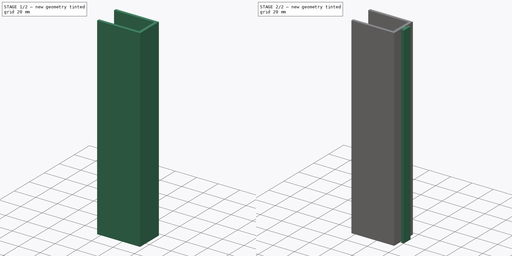
[diagram: build sequence overview — one tinted view per stage of 2, left to right]
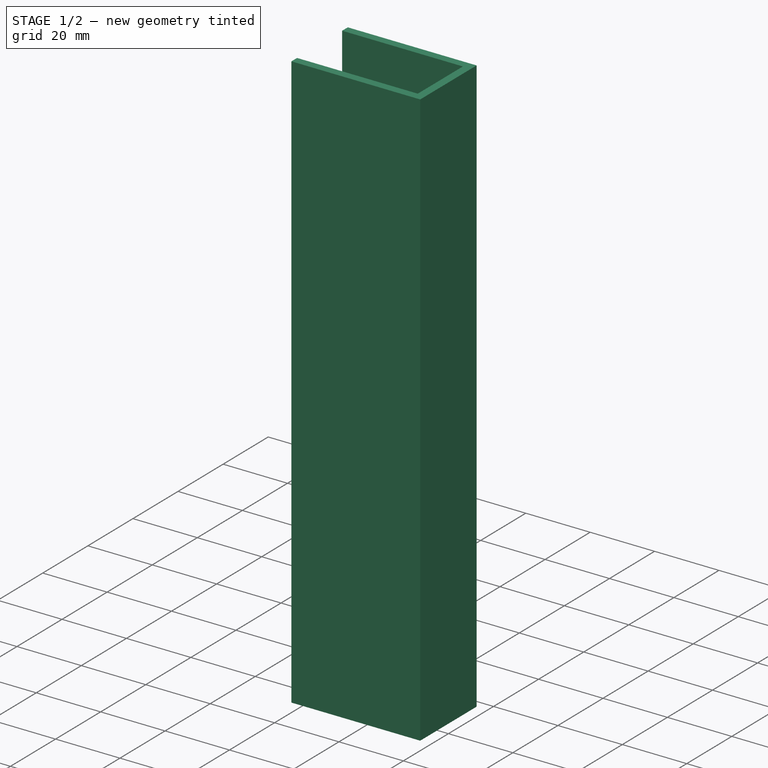
[diagram: stage 1 of 2 — iso view after this stage's code; geometry added in this stage tinted green]
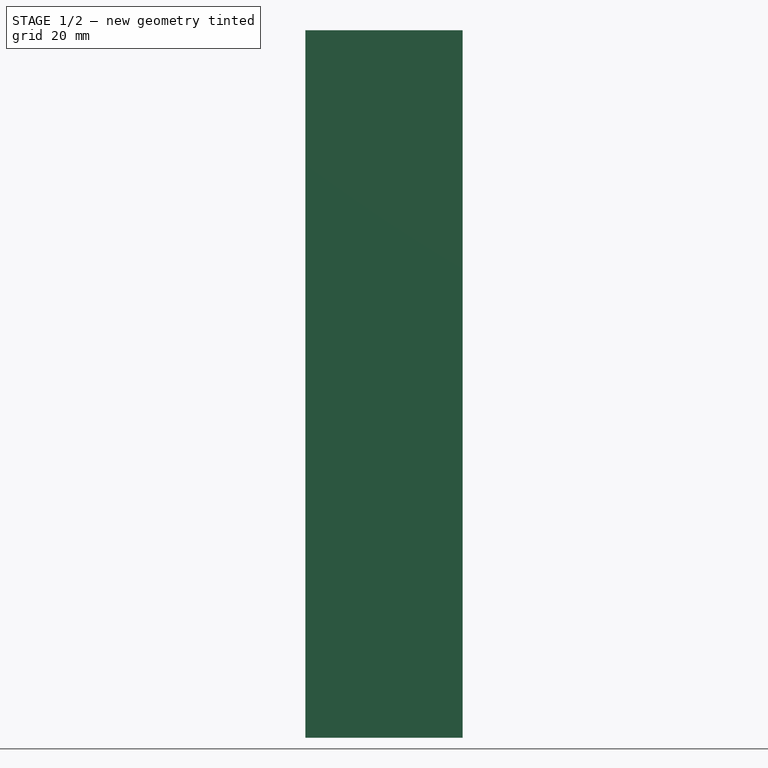
[diagram: stage 1 of 2 — front view after this stage's code; geometry added in this stage tinted green]
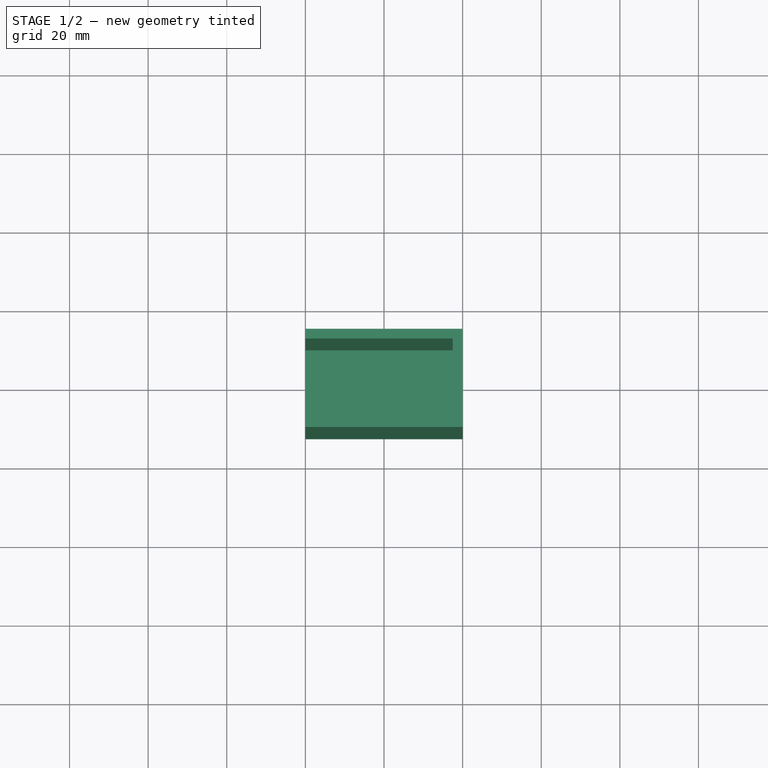
[diagram: stage 1 of 2 — top view after this stage's code; geometry added in this stage tinted green]
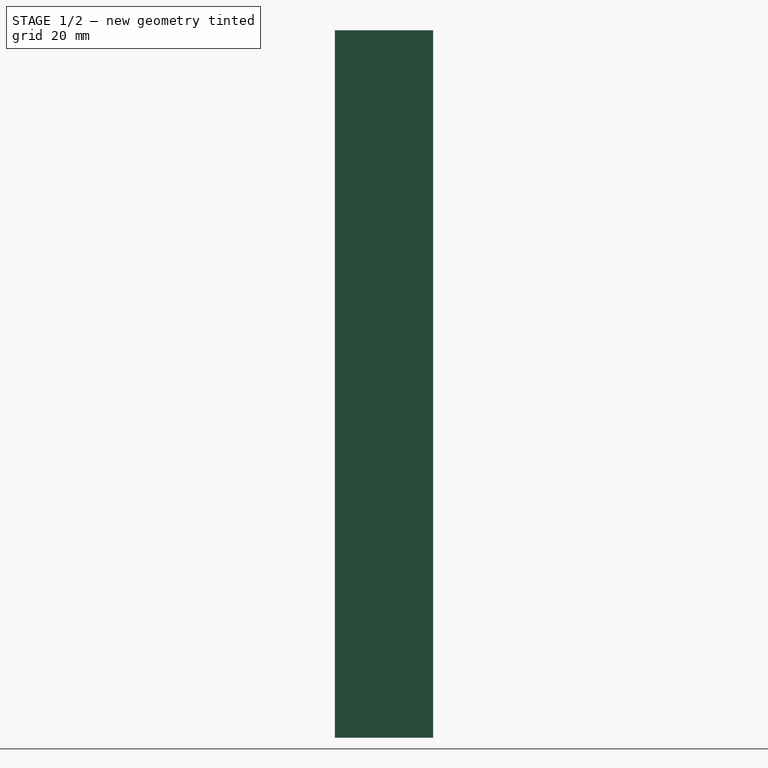
[diagram: stage 1 of 2 — right view after this stage's code; geometry added in this stage tinted green]
FCSTD DOCUMENT  (FreeCAD 0.19R)
Label: soportedeslizado
License: All rights reserved
LicenseURL: http://en.wikipedia.org/wiki/All_rights_reserved
objects: Sketcher::SketchObject×10, PartDesign::Pad×3, App::Part×1, PartDesign::Pocket×1, PartDesign::Plane×1, PartDesign::Body×1
note: 20 computed .brp shape members not serialized (recipe doc carries the construction recipe); baked Part::Feature solids carry a one-line shape summary decoded from their .brp

FEATURE [App::Part] Part
  Origin = -> Origin
FEATURE [Sketcher::SketchObject] Sketch
  FullyConstrained = false
  MapMode = 5
  Support = -> [XY_Plane001]
  sketch-geometry (6):
    g0: LineSegment StartX=-20 StartY=-12.5 StartZ=0 EndX=20 EndY=-12.5 EndZ=0
    g1: LineSegment StartX=20 StartY=-12.5 StartZ=0 EndX=20 EndY=12.5 EndZ=0
    g2: LineSegment StartX=20 StartY=12.5 StartZ=0 EndX=-20 EndY=12.5 EndZ=0
    g3: LineSegment StartX=-20 StartY=12.5 StartZ=0 EndX=-20 EndY=-12.5 EndZ=0
    g4: LineSegment StartX=0 StartY=0 StartZ=0 EndX=20 EndY=12.5 EndZ=0
    g5: LineSegment StartX=-20 StartY=-12.5 StartZ=0 EndX=0 EndY=0 EndZ=0
  constraints (15):
    c: Coincident(g0,g1)
    c: Coincident(g1,g2)
    c: Coincident(g2,g3)
    c: Coincident(g3,g0)
    c: Horizontal(g0)
    c: Horizontal(g2)
    c: Vertical(g1)
    c: Vertical(g3)
    c: DistanceX(g0,g0) = 40
    c: DistanceY(g1,g1) = 25
    c: Coincident(g4,g-1)
    c: Coincident(g4,g1)
    c: Coincident(g5,g0)
    c: Coincident(g5,g-1)
    c: Parallel(g5,g4)
FEATURE [PartDesign::Pad] Pad
  Direction = (1,1,1)
  Length = 180
  Length2 = 100
  Profile = -> Sketch
  Refine = true
  Type = 0
FEATURE [Sketcher::SketchObject] Sketch001
  ExternalGeometry = -> [Pad]
  FullyConstrained = false
  MapMode = 5
  Placement = pos=(0,0,180) rot=(0,0,1;0rad)
  Support = -> [Pad]
  sketch-geometry (7):
    g0: LineSegment StartX=17.5 StartY=10 StartZ=0 EndX=-22.0998 EndY=10 EndZ=0
    g1: LineSegment StartX=-22.0998 StartY=10 StartZ=0 EndX=-22.0998 EndY=-10 EndZ=0
    g2: LineSegment StartX=-22.0998 StartY=-10 StartZ=0 EndX=17.5 EndY=-10 EndZ=0
    g3: LineSegment StartX=17.5 StartY=-10 StartZ=0 EndX=17.5 EndY=10 EndZ=0
    g4: LineSegment StartX=15.6132 StartY=10 StartZ=0 EndX=15.6132 EndY=12.5 EndZ=0
    g5: LineSegment StartX=14.3222 StartY=-10 StartZ=0 EndX=14.3222 EndY=-12.5 EndZ=0
    g6: LineSegment StartX=17.5 StartY=-3.39475 StartZ=0 EndX=20 EndY=-3.39475 EndZ=0
  constraints (20):
    c: Coincident(g0,g1)
    c: Coincident(g1,g2)
    c: Coincident(g2,g3)
    c: Coincident(g3,g0)
    c: Horizontal(g0)
    c: Horizontal(g2)
    c: Vertical(g1)
    c: Vertical(g3)
    c: PointOnObject(g4,g0)
    c: PointOnObject(g4,g-6)
    c: Vertical(g4)
    c: PointOnObject(g5,g2)
    c: PointOnObject(g5,g-4)
    c: Vertical(g5)
    c: PointOnObject(g6,g3)
    c: PointOnObject(g6,g-3)
    c: Horizontal(g6)
    c: DistanceY(g5,g5) = 2.5
    c: DistanceY(g4,g4) = 2.5
    c: DistanceX(g6,g6) = 2.5
FEATURE [PartDesign::Pocket] Pocket
  BaseFeature = -> Pad
  Length = 172.5
  Length2 = 100
  Profile = -> Sketch001
  Refine = true
  Type = 0
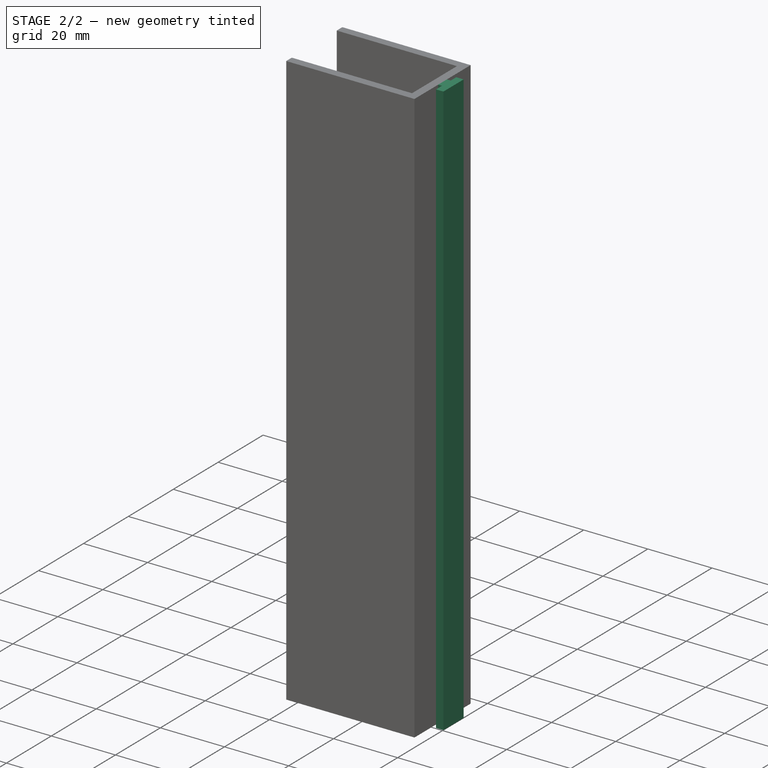
[diagram: stage 2 of 2 — iso view after this stage's code; geometry added in this stage tinted green]
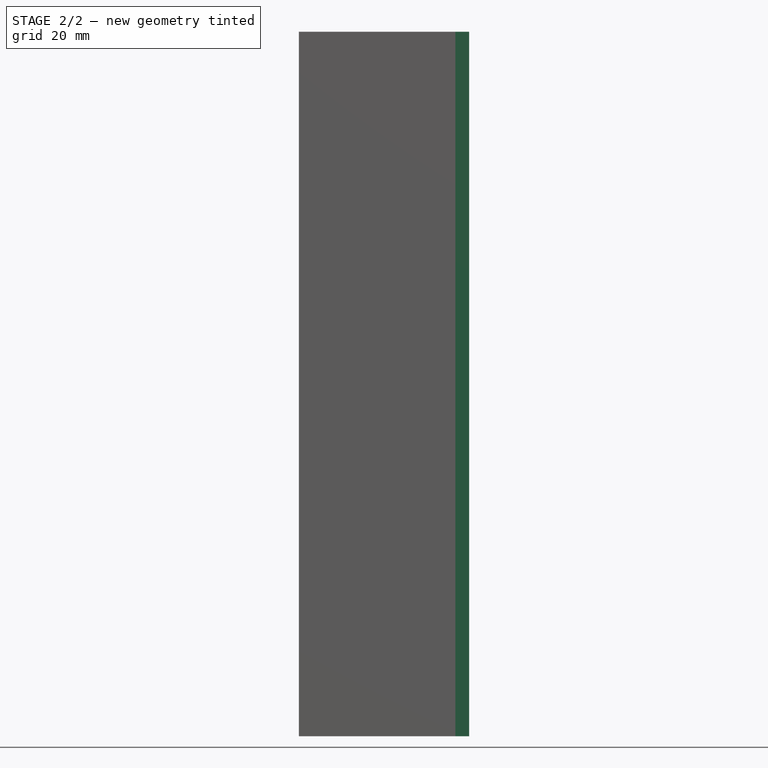
[diagram: stage 2 of 2 — front view after this stage's code; geometry added in this stage tinted green]
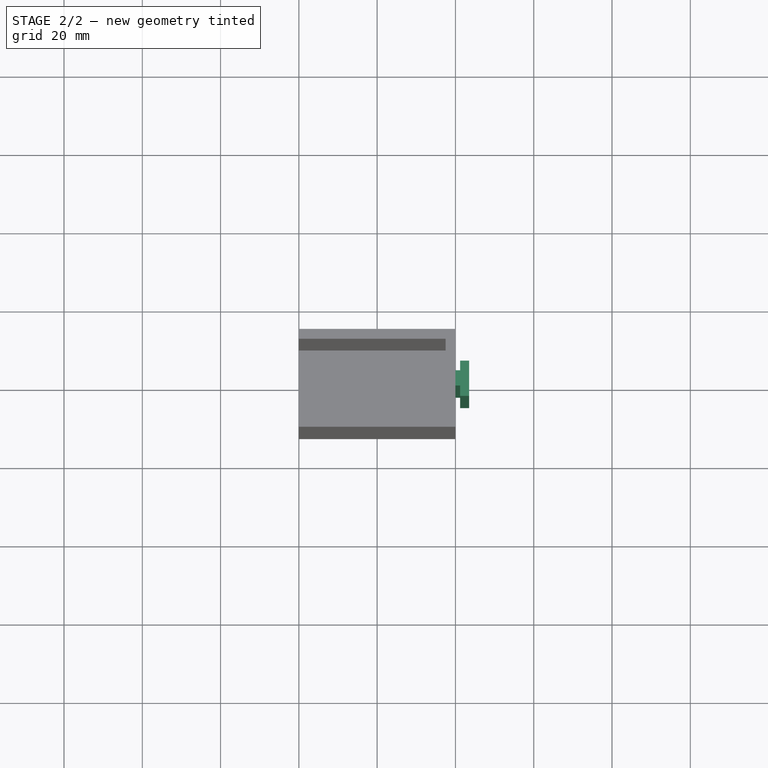
[diagram: stage 2 of 2 — top view after this stage's code; geometry added in this stage tinted green]
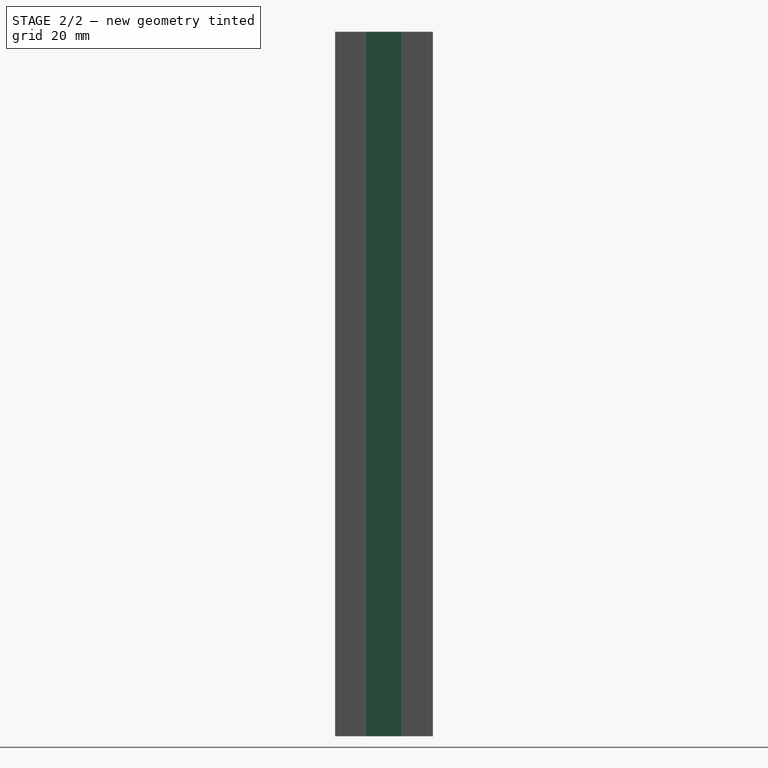
[diagram: stage 2 of 2 — right view after this stage's code; geometry added in this stage tinted green]
FEATURE [PartDesign::Plane] DatumPlane
  Length = 60
  MapMode = 5
  Placement = pos=(0,0,180) rot=(0,0,1;0rad)
  ResizeMode = 0
  Support = -> [Pocket]
  Width = 60
FEATURE [Sketcher::SketchObject] Sketch002
  ExternalGeometry = -> [Pocket]
  FullyConstrained = false
  MapMode = 5
  Placement = pos=(0,0,180) rot=(0,0,1;0rad)
  Support = -> [Pocket]
  sketch-geometry (8):
    g0: LineSegment StartX=-16.5292 StartY=10 StartZ=0 EndX=-16.5292 EndY=-10 EndZ=0
    g1: LineSegment StartX=19.2329 StartY=-1.95 StartZ=0 EndX=21.2 EndY=-1.95 EndZ=0
    g2: LineSegment StartX=21.2 StartY=-1.95 StartZ=0 EndX=21.2 EndY=1.95 EndZ=0
    g3: LineSegment StartX=21.2 StartY=1.95 StartZ=0 EndX=19.2329 EndY=1.95 EndZ=0
    g4: LineSegment StartX=19.2329 StartY=1.95 StartZ=0 EndX=19.2329 EndY=-1.95 EndZ=0
    g5: LineSegment StartX=19.2329 StartY=-1.95 StartZ=0 EndX=19.2329 EndY=-12.5 EndZ=0
    g6: LineSegment StartX=19.2329 StartY=1.95 StartZ=0 EndX=19.2329 EndY=12.5 EndZ=0
    g7: LineSegment StartX=20 StartY=1.26953 StartZ=0 EndX=21.2 EndY=1.26953 EndZ=0
  constraints (25):
    c: PointOnObject(g0,g-7)
    c: PointOnObject(g0,g-6)
    c: Vertical(g0)
    c: DistanceX(g-6,g-6) = 37.5
    c: DistanceY(g-3,g-3) = 25
    c: Coincident(g1,g2)
    c: Coincident(g2,g3)
    c: Coincident(g3,g4)
    c: Coincident(g4,g1)
    c: Horizontal(g1)
    c: Horizontal(g3)
    c: Vertical(g2)
    c: Vertical(g4)
    c: DistanceY(g4,g4) = 3.9
    c: Coincident(g5,g1)
    c: PointOnObject(g5,g-5)
    c: Vertical(g5)
    c: Coincident(g6,g3)
    c: PointOnObject(g6,g-4)
    c: Vertical(g6)
    c: Equal(g6,g5)
    c: PointOnObject(g7,g-3)
    c: PointOnObject(g7,g2)
    c: Horizontal(g7)
    c: DistanceX(g7,g7) = 1.2
FEATURE [PartDesign::Pad] Pad001
  BaseFeature = -> Pocket
  Direction = (1,1,1)
  Length = 10
  Length2 = 100
  Profile = -> Sketch002
  Refine = true
  Type = 3
  UpToFace = -> Pocket [Face4]
FEATURE [Sketcher::SketchObject] Sketch003
  ExternalGeometry = -> [Pad001]
  FullyConstrained = false
  MapMode = 5
  Placement = pos=(0,0,180) rot=(0,0,1;0rad)
  Support = -> [DatumPlane]
  sketch-geometry (11):
    g0: LineSegment StartX=21.2 StartY=-1.95 StartZ=0 EndX=21.2 EndY=-4.5961 EndZ=0
    g1: LineSegment StartX=21.2 StartY=-4.5961 StartZ=0 EndX=23.5 EndY=-4.5961 EndZ=0
    g2: LineSegment StartX=23.5 StartY=-4.5961 StartZ=0 EndX=23.5 EndY=4.4039 EndZ=0
    g3: LineSegment StartX=23.5 StartY=4.4039 StartZ=0 EndX=21.2 EndY=4.4039 EndZ=0
    g4: LineSegment StartX=21.2 StartY=4.4039 StartZ=0 EndX=21.2 EndY=-4.5961 EndZ=0
    g5: LineSegment StartX=21.2 StartY=1.95 StartZ=0 EndX=21.2 EndY=4.4039 EndZ=0
    g6: LineSegment StartX=21.2 StartY=-1.95 StartZ=0 EndX=21.2 EndY=-4.5961 EndZ=0
    g7: LineSegment StartX=21.2 StartY=-1.95 StartZ=0 EndX=22.5311 EndY=-1.95 EndZ=0
    g8: LineSegment StartX=22.5527 StartY=-2.0461 StartZ=0 EndX=22.5527 EndY=-4.5961 EndZ=0
    g9: LineSegment StartX=21.2 StartY=1.95 StartZ=0 EndX=22.5441 EndY=1.95 EndZ=0
    g10: LineSegment StartX=22.5869 StartY=1.8539 StartZ=0 EndX=22.5869 EndY=4.4039 EndZ=0
  constraints (26):
    c: Coincident(g0,g-7)
    c: Vertical(g0)
    c: Coincident(g1,g2)
    c: Coincident(g2,g3)
    c: Coincident(g3,g4)
    c: Coincident(g4,g1)
    c: Horizontal(g1)
    c: Horizontal(g3)
    c: Vertical(g2)
    c: Vertical(g4)
    c: Coincident(g1,g0)
    c: DistanceY(g2,g2) = 9
    c: Coincident(g5,g-5)
    c: Coincident(g5,g3)
    c: Coincident(g6,g0)
    c: Coincident(g6,g1)
    c: Coincident(g7,g0)
    c: Horizontal(g7)
    c: PointOnObject(g8,g1)
    c: Vertical(g8)
    c: Coincident(g9,g5)
    c: Horizontal(g9)
    c: PointOnObject(g10,g3)
    c: Vertical(g10)
    c: Equal(g10,g8)
    c: DistanceX(g1,g1) = 2.3
FEATURE [PartDesign::Pad] Pad002
  BaseFeature = -> Pad001
  Direction = (1,1,1)
  Length = 0
  Length2 = 100
  Profile = -> Sketch003
  Refine = true
  Type = 3
  UpToFace = -> Pad001 [Face13]
FEATURE [Sketcher::SketchObject] Sketch004
  FullyConstrained = true
  MapMode = 5
  Placement = pos=(0,0,0) rot=(1,0,0;3.14159rad)
  Support = -> [Pad001]
FEATURE [Sketcher::SketchObject] Sketch005
  ExternalGeometry = -> [Pad002]
  FullyConstrained = true
  MapMode = 5
  Placement = pos=(0,0,180) rot=(0,0,1;0rad)
  Support = -> [DatumPlane]
FEATURE [Sketcher::SketchObject] Sketch006
  ExternalGeometry = -> [Pad002]
  FullyConstrained = true
  MapMode = 5
  Placement = pos=(0,0,180) rot=(0,0,1;0rad)
  Support = -> [DatumPlane]
  constraints (2):
    c: DistanceX(g-3,g-3) = 37.5
    c: DistanceY(g-4,g-4) = 20
FEATURE [Sketcher::SketchObject] Sketch007
  ExternalGeometry = -> [Pad002]
  FullyConstrained = true
  MapMode = 5
  Placement = pos=(0,0,180) rot=(0,0,1;0rad)
  Support = -> [DatumPlane]
  constraints (2):
    c: DistanceX(g-4,g-4) = 37.5
    c: DistanceY(g-3,g-3) = 20
FEATURE [Sketcher::SketchObject] Sketch008
  ExternalGeometry = -> [Pad002]
  FullyConstrained = true
  MapMode = 5
  Placement = pos=(-20,0,0) rot=(0.57735,-0.57735,-0.57735;2.0944rad)
  Support = -> [Pad002]
  constraints (1):
    c: DistanceY(g-3,g-3) = 172.5
FEATURE [Sketcher::SketchObject] Sketch009
  ExternalGeometry = -> [Pad002]
  FullyConstrained = true
  MapMode = 5
  Placement = pos=(0,0,180) rot=(0,0,1;0rad)
  Support = -> [DatumPlane]
  constraints (2):
    c: DistanceX(g-3,g-3) = 37.5
    c: DistanceY(g-4,g-4) = 20
FEATURE [PartDesign::Body] Body
  Group = -> [Sketch,Pad,Sketch001,Pocket,DatumPlane,Sketch002,Pad001,Sketch003,Pad002,Sketch004,Sketch005,Sketch006,Sketch007,Sketch008,Sketch009]
  Origin = -> Origin001
  Tip = -> Pad002
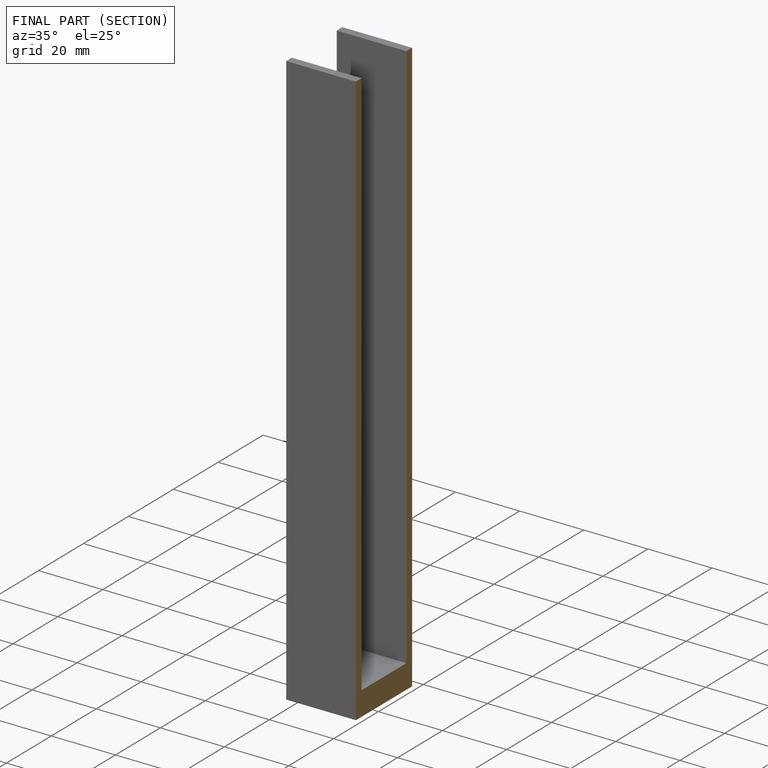
[diagram: finished part — half-section view (interior)]
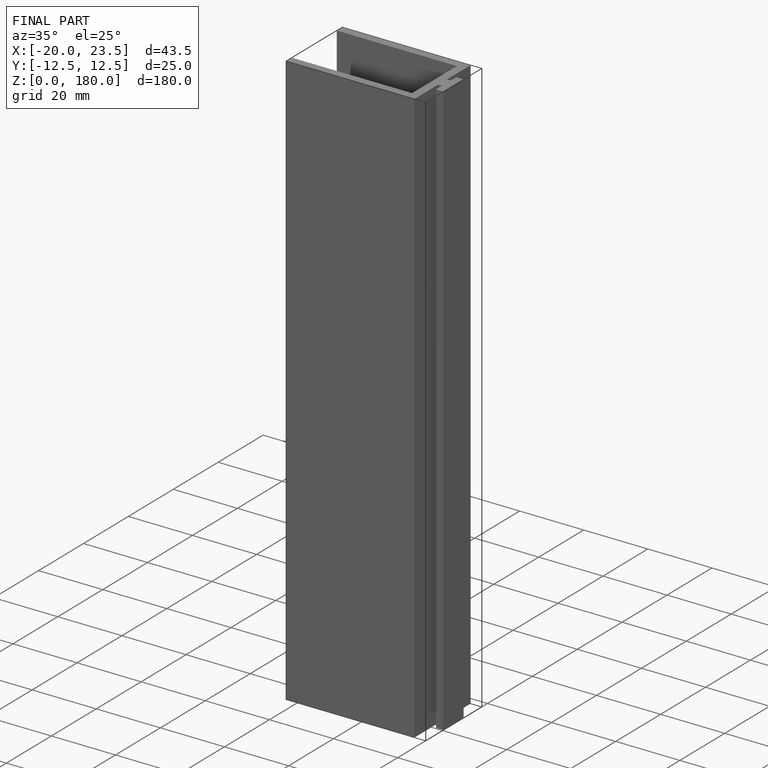
[diagram: finished part — iso view with bounding-box wireframe]
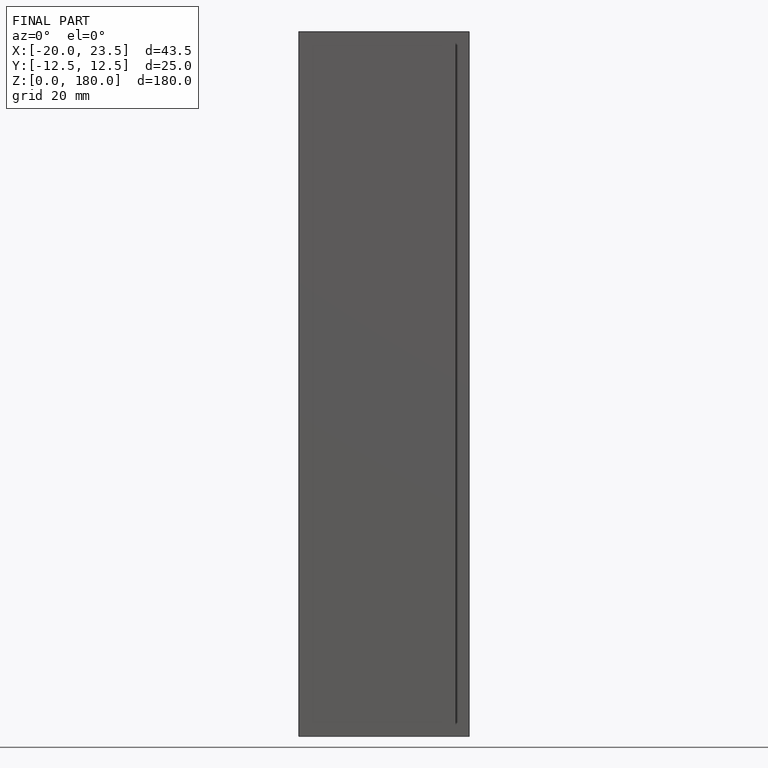
[diagram: finished part — front view with bounding-box wireframe]
